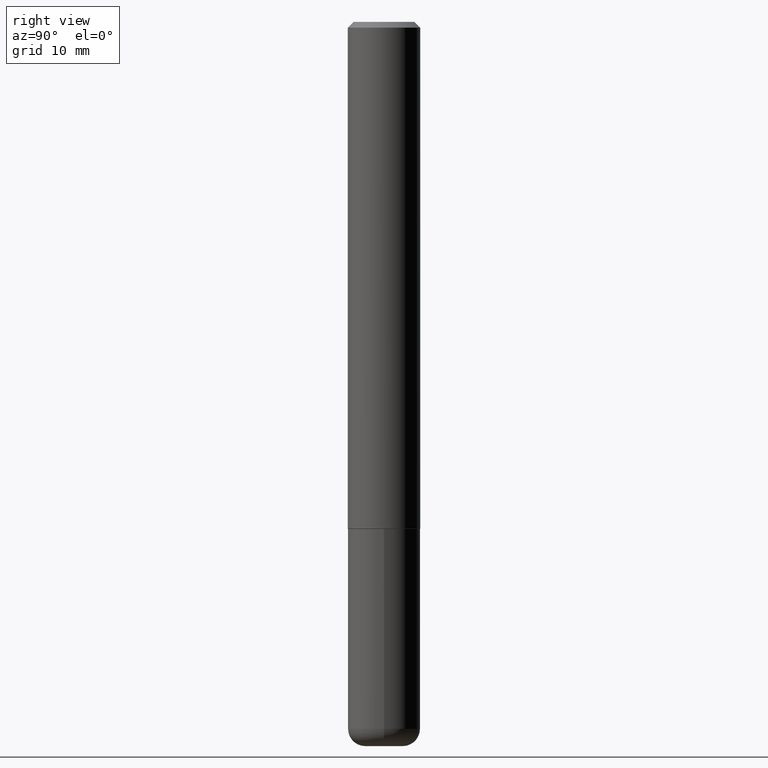
[diagram: clean part render]
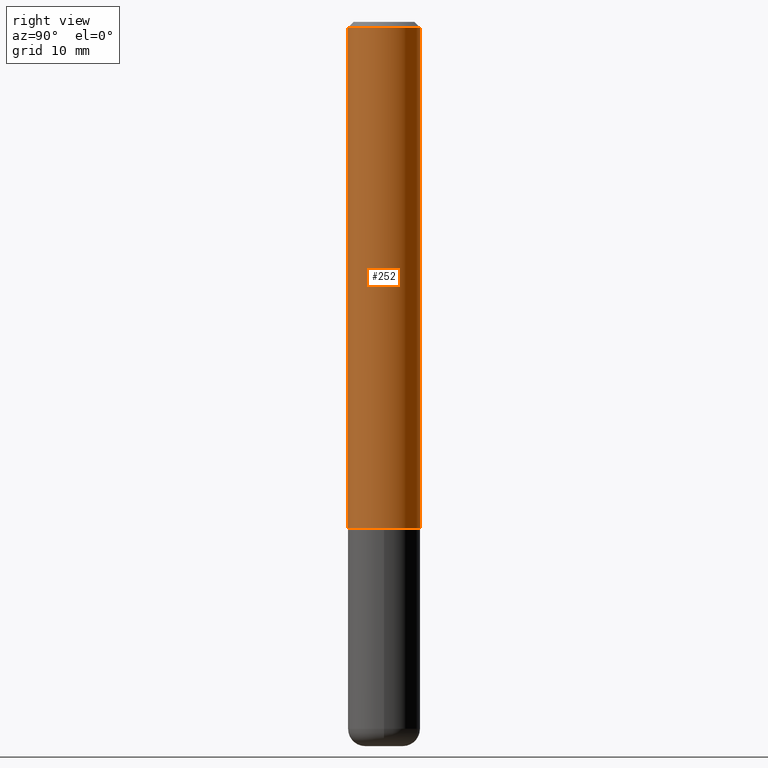
[diagram: same view with one face highlighted and labeled with its STEP entity id]
A machine part, right view. The second image highlights one B-rep face of the part: STEP entity #252.
In plain terms, the highlighted cylindrical surface (edge-blend (fillet) strip) has radius 3.175 mm, axis along (-0, 0, 1).
Its self-contained STEP definition (entity closure, byte-faithful):
#16 = DIRECTION ( 'NONE',  ( -2.444769625519019670E-29, 3.492482605351917386E-15, 1.000000000000000000 ) ) ;
#17 = CARTESIAN_POINT ( 'NONE',  ( 8.881784197001479121E-16, 0.1249999999999941019, -1.749000000000000332 ) ) ;
#18 = ORIENTED_EDGE ( 'NONE', *, *, #115, .F. ) ;
#21 = CARTESIAN_POINT ( 'NONE',  ( 4.889539251038044560E-31, -6.984965210703842315E-17, -0.02000000000000002470 ) ) ;
#26 = VERTEX_POINT ( 'NONE', #93 ) ;
#36 = EDGE_LOOP ( 'NONE', ( #300, #112, #126, #18 ) ) ;
#43 = VECTOR ( 'NONE', #400, 39.37007874015748143 ) ;
#67 = DIRECTION ( 'NONE',  ( -2.444769625519019670E-29, 3.492482605351917386E-15, 1.000000000000000000 ) ) ;
#84 = EDGE_CURVE ( 'NONE', #26, #398, #234, .T. ) ;
#93 = CARTESIAN_POINT ( 'NONE',  ( -8.575622497214408537E-16, -0.1250000000000000555, -0.01999999999999959102 ) ) ;
#97 = AXIS2_PLACEMENT_3D ( 'NONE', #335, #16, #280 ) ;
#103 = CARTESIAN_POINT ( 'NONE',  ( 8.881784197001260212E-16, 0.1250000000000001110, -4.365603256689900677E-16 ) ) ;
#112 = ORIENTED_EDGE ( 'NONE', *, *, #381, .T. ) ;
#115 = EDGE_CURVE ( 'NONE', #333, #26, #142, .T. ) ;
#126 = ORIENTED_EDGE ( 'NONE', *, *, #84, .F. ) ;
#142 = LINE ( 'NONE', #218, #43 ) ;
#161 = AXIS2_PLACEMENT_3D ( 'NONE', #304, #273, #405 ) ;
#162 = DIRECTION ( 'NONE',  ( -2.444769625519019670E-29, 3.492482605351917386E-15, 1.000000000000000000 ) ) ;
#215 = CYLINDRICAL_SURFACE ( 'NONE', #161, 0.1250000000000001110 ) ;
#218 = CARTESIAN_POINT ( 'NONE',  ( -8.728703347107841277E-16, -0.1250000000000001110, 4.365603256689900677E-16 ) ) ;
#234 = CIRCLE ( 'NONE', #259, 0.1250000000000000000 ) ;
#238 = VERTEX_POINT ( 'NONE', #17 ) ;
#245 = EDGE_CURVE ( 'NONE', #333, #238, #248, .T. ) ;
#248 = CIRCLE ( 'NONE', #97, 0.1250000000000002498 ) ;
#252 = ADVANCED_FACE ( 'NONE', ( #366 ), #215, .T. ) ;
#253 = DIRECTION ( 'NONE',  ( -6.982962677686265922E-15, -1.000000000000000000, 3.483106191921935554E-15 ) ) ;
#259 = AXIS2_PLACEMENT_3D ( 'NONE', #21, #162, #253 ) ;
#273 = DIRECTION ( 'NONE',  ( -2.444769625519019670E-29, 3.492482605351917386E-15, 1.000000000000000000 ) ) ;
#280 = DIRECTION ( 'NONE',  ( -6.982962677686265133E-15, -1.000000000000000000, 4.370956789862812472E-15 ) ) ;
#295 = LINE ( 'NONE', #103, #401 ) ;
#300 = ORIENTED_EDGE ( 'NONE', *, *, #245, .T. ) ;
#304 = CARTESIAN_POINT ( 'NONE',  ( 0.000000000000000000, 0.000000000000000000, 0.000000000000000000 ) ) ;
#312 = CARTESIAN_POINT ( 'NONE',  ( -8.728703347107422194E-16, -0.1250000000000063560, -1.748999999999999222 ) ) ;
#326 = CARTESIAN_POINT ( 'NONE',  ( 8.728703347107837333E-16, 0.1249999999999999306, -0.02000000000000046185 ) ) ;
#333 = VERTEX_POINT ( 'NONE', #312 ) ;
#335 = CARTESIAN_POINT ( 'NONE',  ( 4.275902075032765006E-29, -6.108352076760502035E-15, -1.748999999999999888 ) ) ;
#366 = FACE_OUTER_BOUND ( 'NONE', #36, .T. ) ;
#381 = EDGE_CURVE ( 'NONE', #238, #398, #295, .T. ) ;
#398 = VERTEX_POINT ( 'NONE', #326 ) ;
#400 = DIRECTION ( 'NONE',  ( -2.444769625519019670E-29, 3.492482605351917386E-15, 1.000000000000000000 ) ) ;
#401 = VECTOR ( 'NONE', #67, 39.37007874015748143 ) ;
#405 = DIRECTION ( 'NONE',  ( -6.982962677686266711E-15, -1.000000000000000000, 3.492482605351917386E-15 ) ) ;